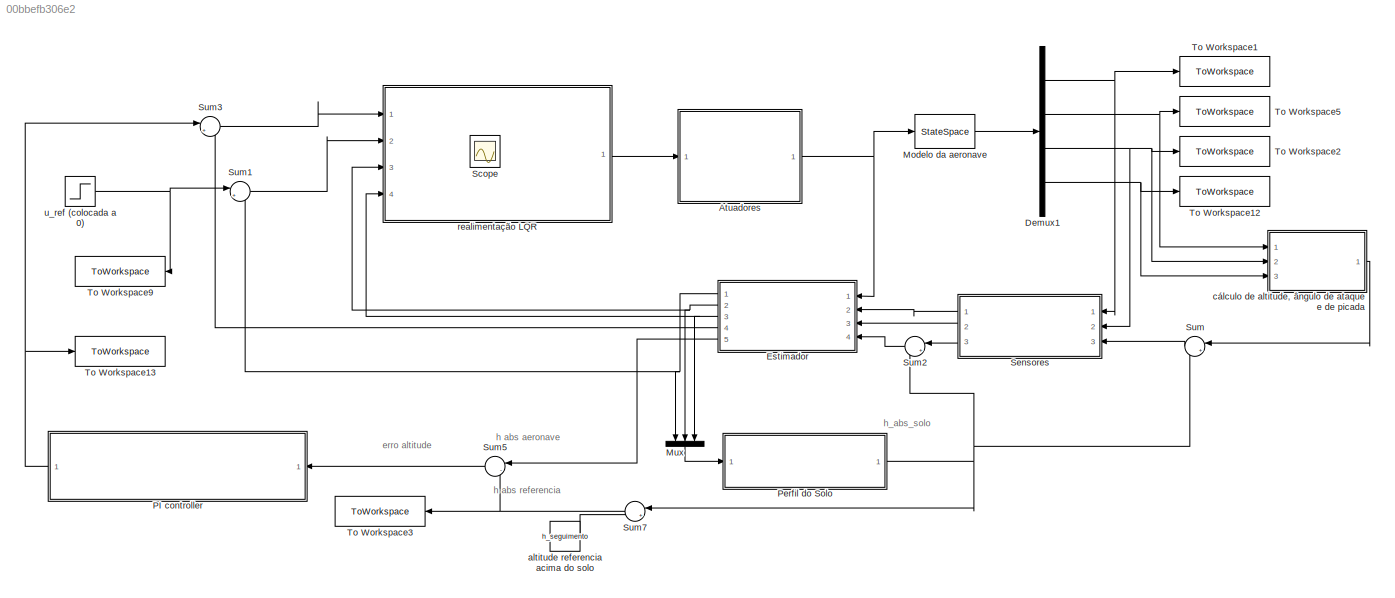
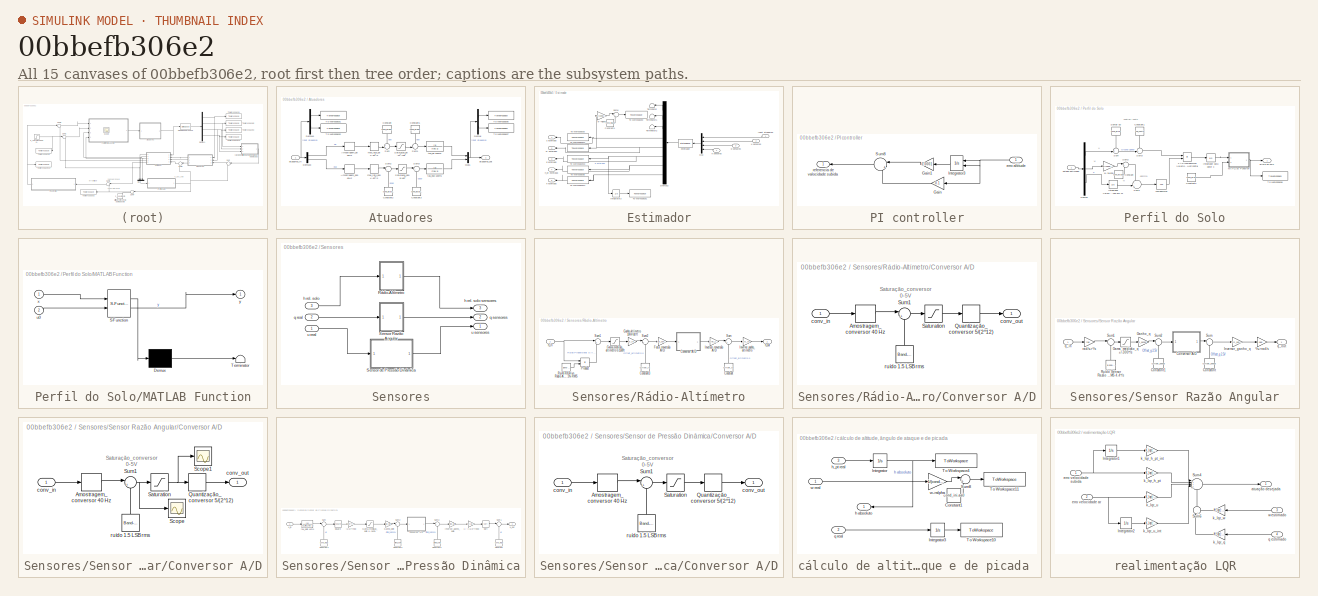
[diagram: thumbnail index - all 15 canvases of the model, root first then tree order]
MODEL slx_00bbefb306e2
KIND model
CONFIG AbsTol = auto
CONFIG EnableMultiTasking = off
CONFIG FixedStep = auto
CONFIG MaxStep = auto
CONFIG MinStep = auto
CONFIG RelTol = 1e-3
CONFIG SampleTimeConstraint = Unconstrained
CONFIG Solver = VariableStepAuto
CONFIG SolverName = VariableStepAuto
CONFIG StartTime = 0.0
CONFIG StopTime = 100
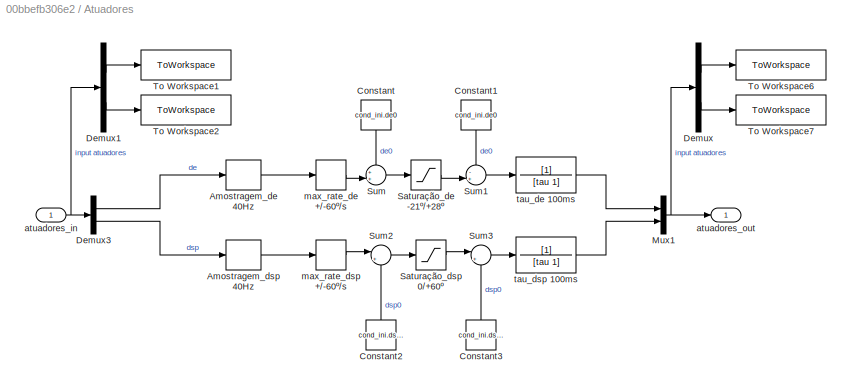
BLOCK [SubSystem] Atuadores
  Ports = [1, 1]
  RequestExecContextInheritance = off
BLOCK [RateLimiter] Atuadores/ max_rate_de +//-60º//s
  FallingSlewLimit = -vel_max_at*deg
  RisingSlewLimit = vel_max_at*deg
  SampleTimeMode = inherited
BLOCK [RateLimiter] Atuadores/ max_rate_dsp +//-60º//s
  FallingSlewLimit = -vel_max_at*deg
  RisingSlewLimit = vel_max_at*deg
  SampleTimeMode = inherited
BLOCK [ZeroOrderHold] Atuadores/Amostragem_de 40Hz
  SampleTime = 1/f_amost
BLOCK [ZeroOrderHold] Atuadores/Amostragem_dsp 40Hz
  SampleTime = 1/f_amost
BLOCK [Constant] Atuadores/Constant
  NameLocation = left
  Value = cond_ini.de0
BLOCK [Constant] Atuadores/Constant1
  NameLocation = left
  Value = cond_ini.de0
BLOCK [Constant] Atuadores/Constant2
  NameLocation = right
  Value = cond_ini.dsp0
BLOCK [Constant] Atuadores/Constant3
  NameLocation = right
  Value = cond_ini.dsp0
BLOCK [Demux] Atuadores/Demux
  Outputs = 2
  Ports = [1, 2]
BLOCK [Demux] Atuadores/Demux1
  Outputs = 2
  Ports = [1, 2]
BLOCK [Demux] Atuadores/Demux3
  Outputs = 2
  Ports = [1, 2]
BLOCK [Mux] Atuadores/Mux1
  DisplayOption = bar
  Inputs = 2
  Ports = [2, 1]
BLOCK [Saturate] Atuadores/Saturação_de -21º//+28º
  LowerLimit = max_deflec.demin
  UpperLimit = max_deflec.demax
BLOCK [Saturate] Atuadores/Saturação_dsp 0//+60º
  LowerLimit = 0
  UpperLimit = max_deflec.spmax
BLOCK [Sum] Atuadores/Sum
  Inputs = ++|
  Ports = [2, 1]
BLOCK [Sum] Atuadores/Sum1
  Inputs = -+|
  Ports = [2, 1]
BLOCK [Sum] Atuadores/Sum2
  Inputs = |++
  Ports = [2, 1]
BLOCK [Sum] Atuadores/Sum3
  Inputs = |+-
  Ports = [2, 1]
BLOCK [ToWorkspace] Atuadores/To Workspace1
  FixptAsFi = on
  MaxDataPoints = inf
  Ports = [1]
  SampleTime = -1
  SaveFormat = Structure With Time
  VariableName = de_ref
BLOCK [ToWorkspace] Atuadores/To Workspace2
  FixptAsFi = on
  MaxDataPoints = inf
  Ports = [1]
  SampleTime = -1
  SaveFormat = Structure With Time
  VariableName = dsp_ref
BLOCK [ToWorkspace] Atuadores/To Workspace6
  FixptAsFi = on
  MaxDataPoints = inf
  Ports = [1]
  SampleTime = -1
  SaveFormat = Structure With Time
  VariableName = de
BLOCK [ToWorkspace] Atuadores/To Workspace7
  FixptAsFi = on
  MaxDataPoints = inf
  Ports = [1]
  SampleTime = -1
  SaveFormat = Structure With Time
  VariableName = dsp
BLOCK [Inport] Atuadores/atuadores_in
BLOCK [Outport] Atuadores/atuadores_out
BLOCK [TransferFcn] Atuadores/tau_de 100ms
  Denominator = [tau 1]
BLOCK [TransferFcn] Atuadores/tau_dsp 100ms
  Denominator = [tau 1]
BLOCK [Demux] Demux1
  Ports = [1, 4]
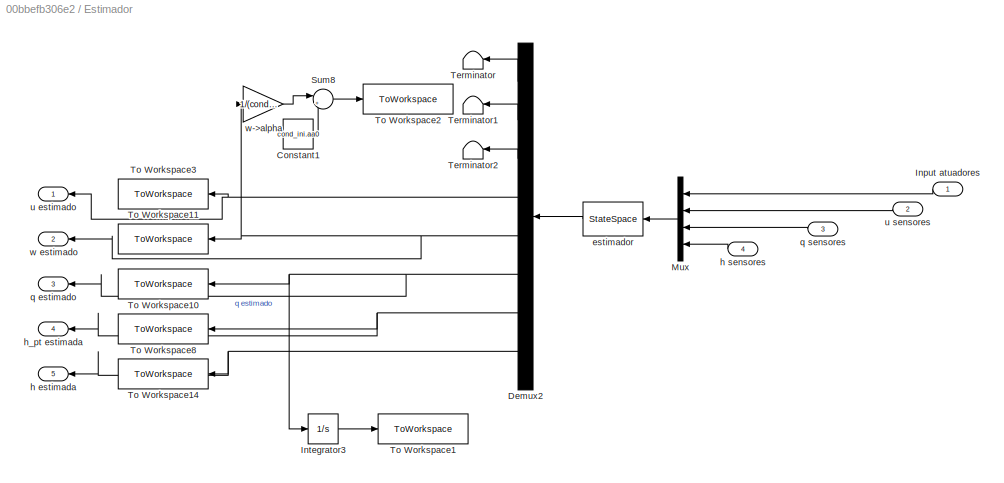
BLOCK [SubSystem] Estimador
  NameLocation = top
  Ports = [4, 5]
  RequestExecContextInheritance = off
BLOCK [Constant] Estimador/Constant1
  Value = cond_ini.aa0
BLOCK [Demux] Estimador/Demux2
  NameLocation = top
  Outputs = 8
  Ports = [1, 8]
BLOCK [Inport] Estimador/Input atuadores
  NameLocation = top
BLOCK [Integrator] Estimador/Integrator3
  InitialCondition = cond_ini.tt0
  Ports = [1, 1]
BLOCK [Mux] Estimador/Mux
  DisplayOption = bar
  NameLocation = top
  Ports = [4, 1]
BLOCK [Sum] Estimador/Sum8
  Inputs = |++
  Ports = [2, 1]
BLOCK [Terminator] Estimador/Terminator
  NameLocation = top
BLOCK [Terminator] Estimador/Terminator1
  NameLocation = top
BLOCK [Terminator] Estimador/Terminator2
  NameLocation = top
BLOCK [ToWorkspace] Estimador/To Workspace1
  FixptAsFi = on
  MaxDataPoints = inf
  Ports = [1]
  SampleTime = -1
  VariableName = tt_e
BLOCK [ToWorkspace] Estimador/To Workspace10
  FixptAsFi = on
  MaxDataPoints = inf
  NameLocation = top
  Ports = [1]
  SampleTime = -1
  VariableName = q_e
BLOCK [ToWorkspace] Estimador/To Workspace11
  FixptAsFi = on
  MaxDataPoints = inf
  NameLocation = top
  Ports = [1]
  SampleTime = -1
  VariableName = w_e
BLOCK [ToWorkspace] Estimador/To Workspace14
  FixptAsFi = on
  MaxDataPoints = inf
  NameLocation = top
  Ports = [1]
  SampleTime = -1
  VariableName = h_e
BLOCK [ToWorkspace] Estimador/To Workspace2
  FixptAsFi = on
  MaxDataPoints = inf
  Ports = [1]
  SampleTime = -1
  VariableName = aoa_e
BLOCK [ToWorkspace] Estimador/To Workspace3
  FixptAsFi = on
  MaxDataPoints = inf
  NameLocation = top
  Ports = [1]
  SampleTime = -1
  VariableName = u_e
BLOCK [ToWorkspace] Estimador/To Workspace8
  FixptAsFi = on
  MaxDataPoints = inf
  NameLocation = top
  Ports = [1]
  SampleTime = -1
  VariableName = h_pt_e
BLOCK [StateSpace] Estimador/estimador
  A = ae
  B = be
  C = ce
  D = de
  InitialCondition = x0_e
  NameLocation = top
  Ports = [1, 1]
BLOCK [Outport] Estimador/h estimada
  NameLocation = top
  Port = 5
BLOCK [Inport] Estimador/h sensores
  NameLocation = top
  Port = 4
BLOCK [Outport] Estimador/h_pt estimada
  NameLocation = top
  Port = 4
BLOCK [Outport] Estimador/q estimado
  Port = 3
BLOCK [Inport] Estimador/q sensores
  Port = 3
BLOCK [Outport] Estimador/u estimado
  NameLocation = top
BLOCK [Inport] Estimador/u sensores
  Port = 2
BLOCK [Outport] Estimador/w estimado
  Port = 2
BLOCK [Gain] Estimador/w->alpha
  Gain = 1/(cond_ini.u0)
BLOCK [StateSpace] Modelo da aeronave
  A = a_h_pt
  B = b_h_pt
  C = c_h_pt
  D = d_h_pt
  InitialCondition = x0
  Ports = [1, 1]
BLOCK [Mux] Mux
  DisplayOption = bar
  Inputs = 3
  NameLocation = left
  Ports = [3, 1]
BLOCK [SubSystem] PI controller
  NameLocation = top
  Ports = [1, 1]
  RequestExecContextInheritance = off
BLOCK [Gain] PI controller/Gain
  Gain = 0.1
  NameLocation = top
BLOCK [Gain] PI controller/Gain1
  Gain = 0.0001
  NameLocation = top
BLOCK [Integrator] PI controller/Integrator3
  ExternalReset = either
  NameLocation = top
  Ports = [2, 1]
BLOCK [Sum] PI controller/Sum8
  Inputs = |++
  NameLocation = top
  Ports = [2, 1]
BLOCK [Inport] PI controller/erro altitude
BLOCK [Outport] PI controller/referencia de valocidade subida
  NameLocation = top
BLOCK [SubSystem] Perfil do Solo
  NameLocation = top
  Ports = [1, 1]
  RequestExecContextInheritance = off
BLOCK [Constant] Perfil do Solo/Constant
  Value = cond_ini.aa0
BLOCK [Constant] Perfil do Solo/Constant1
  NameLocation = left
  Value = vel_vento
BLOCK [Constant] Perfil do Solo/Constant2
  Value = cond_ini.u0
BLOCK [Demux] Perfil do Solo/Demux
  Outputs = 3
  Ports = [1, 3]
BLOCK [Integrator] Perfil do Solo/Integrador Velocidade para posiçao em x1
  InitialCondition = cond_ini.tt0
  Ports = [1, 1]
BLOCK [Integrator] Perfil do Solo/Integrador para obter x
  Ports = [1, 1]
BLOCK [SubSystem] Perfil do Solo/MATLAB Function
  ErrorFcn = Stateflow.Translate.translate
  PermitHierarchicalResolution = ExplicitOnly
  Ports = [2, 1]
  RequestExecContextInheritance = off
  SFBlockType = MATLAB Function
  TreatAsAtomicUnit = on
BLOCK [Demux] Perfil do Solo/MATLAB Function/ Demux 
  Outputs = 1
  Ports = [1, 1]
BLOCK [S-Function] Perfil do Solo/MATLAB Function/ SFunction 
  EnableBusSupport = on
  FunctionName = sf_sfun
  PortCounts = [2 2]
  Ports = [2, 2]
  SFcnIsStateOwnerBlock = off
  SFunctionDeploymentMode = off
  Tag = Stateflow S-Function 2
BLOCK [Terminator] Perfil do Solo/MATLAB Function/ Terminator 
BLOCK [Inport] Perfil do Solo/MATLAB Function/u0
  Port = 2
BLOCK [Inport] Perfil do Solo/MATLAB Function/x
BLOCK [Outport] Perfil do Solo/MATLAB Function/y
  VectorParamsAs1DForOutWhenUnconnected = off
BLOCK [Constant] Perfil do Solo/Somar u0
  NameLocation = left
  Value = cond_ini.u0
BLOCK [Sum] Perfil do Solo/Sum
  Inputs = ++|
  Ports = [2, 1]
BLOCK [Sum] Perfil do Solo/Sum1
  Inputs = -+|
  Ports = [2, 1]
BLOCK [Sum] Perfil do Solo/Sum2
  Inputs = |++
  Ports = [2, 1]
BLOCK [Sum] Perfil do Solo/Sum3
  Inputs = -+|
  Ports = [2, 1]
BLOCK [Product] Perfil do Solo/TAS*cos(gamma) Velocidade Horizontal
  Ports = [2, 1]
BLOCK [ToWorkspace] Perfil do Solo/To Workspace8
  FixptAsFi = on
  MaxDataPoints = inf
  Ports = [1]
  SampleTime = -1
  VariableName = h_solo
BLOCK [Outport] Perfil do Solo/altura do solo
  VectorParamsAs1DForOutWhenUnconnected = off
BLOCK [Trigonometry] Perfil do Solo/cos(gamma)
  Operator = cos
  Ports = [1, 1]
BLOCK [Inport] Perfil do Solo/estado estimado
BLOCK [Gain] Perfil do Solo/w->alpha
  Gain = 1/(cond_ini.u0)
BLOCK [Scope] Scope
  Floating = off
  IOType = viewer
  NumInputPorts = 1
  Ports = []
  ScopeSpecificationString = Simulink.scopes.TimeScopeBlockCfg('CurrentConfiguration', extmgr.ConfigurationSet(extmgr.Configuration('Core','General UI',true),extmgr.Configuration('Core','Source UI',true),extmgr.Configuration('Sources','WiredSimulink',true),extmgr.Configuration('Visuals','Time Domain',true,'SerializedDisplays',{struct('MinYLimReal','-14.17435','MaxYLimReal','7.85489','YLabelReal','','MinYLimMag','0.00000','Max...<+1361ch>
BLOCK [SubSystem] Sensores
  NameLocation = top
  Ports = [3, 3]
  RequestExecContextInheritance = off
BLOCK [SubSystem] Sensores/Rádio-Altímetro
  NameLocation = top
  Ports = [1, 1]
  RequestExecContextInheritance = off
BLOCK [Constant] Sensores/Rádio-Altímetro/Constant
  NameLocation = right
  Value = Offset_ra
BLOCK [Constant] Sensores/Rádio-Altímetro/Constant3
  NameLocation = right
  Value = Offset_ra
BLOCK [SubSystem] Sensores/Rádio-Altímetro/Conversor A//D
  Ports = [1, 1]
  RequestExecContextInheritance = off
BLOCK [ZeroOrderHold] Sensores/Rádio-Altímetro/Conversor A//D/Amostragem_conversor 40 Hz
  SampleTime = 1/f_amost
BLOCK [Quantizer] Sensores/Rádio-Altímetro/Conversor A//D/Quantização_conversor 5//(2^12)
  QuantizationInterval = fat_quant
BLOCK [Saturate] Sensores/Rádio-Altímetro/Conversor A//D/Saturation
  LowerLimit = conv_min
  UpperLimit = conv_max
BLOCK [Sum] Sensores/Rádio-Altímetro/Conversor A//D/Sum1
  Inputs = |++
  Ports = [2, 1]
BLOCK [Inport] Sensores/Rádio-Altímetro/Conversor A//D/conv_in
  NameLocation = left
BLOCK [Outport] Sensores/Rádio-Altímetro/Conversor A//D/conv_out
  NameLocation = right
BLOCK [Reference] Sensores/Rádio-Altímetro/Conversor A//D/ruído 1.5 LSB rms  REF=simulink/Sources/Band-Limited
White Noise
  NameLocation = right
  Ports = [0, 1]
  SourceBlock = simulink/Sources/Band-Limited\nWhite Noise
  SourceProductBaseCode = SL
  SourceType = Band-Limited White Noise.
BLOCK [Gain] Sensores/Rádio-Altímetro/Fator_conversão A//D
  Gain = fat_conv_ra
BLOCK [Saturate] Sensores/Rádio-Altímetro/Gama_medição_altímetro 0-1500ft
  LowerLimit = h_ra_min
  NameLocation = top
  UpperLimit = h_ra_max
BLOCK [Gain] Sensores/Rádio-Altímetro/Ganho_altímetro 10mVdc//ft
  Gain = G_ra
BLOCK [Gain] Sensores/Rádio-Altímetro/Inversor_conversão A//D
  Gain = 1/fat_conv_ra
BLOCK [Gain] Sensores/Rádio-Altímetro/Inversor_ganho_altímetro
  Gain = 1/G_ra
BLOCK [Product] Sensores/Rádio-Altímetro/Product
  Ports = [2, 1]
BLOCK [Reference] Sensores/Rádio-Altímetro/Ruído Relativo Rádio Altimetro 1.5% RMS  REF=simulink/Sources/Band-Limited
White Noise
  NameLocation = left
  Ports = [0, 1]
  SourceBlock = simulink/Sources/Band-Limited\nWhite Noise
  SourceProductBaseCode = SL
  SourceType = Band-Limited White Noise.
BLOCK [Sum] Sensores/Rádio-Altímetro/Sum
  Inputs = |+-
  Ports = [2, 1]
BLOCK [Sum] Sensores/Rádio-Altímetro/Sum1
  Inputs = |++
  Ports = [2, 1]
BLOCK [Sum] Sensores/Rádio-Altímetro/Sum2
  Inputs = |++
  Ports = [2, 1]
BLOCK [Inport] Sensores/Rádio-Altímetro/h_in
  NameLocation = left
BLOCK [Outport] Sensores/Rádio-Altímetro/h_out
  NameLocation = right
BLOCK [SubSystem] Sensores/Sensor Razão Angular
  NameLocation = top
  Ports = [1, 1]
  RequestExecContextInheritance = off
BLOCK [Constant] Sensores/Sensor Razão Angular/Constant
  NameLocation = right
  Value = Offset_sensq
BLOCK [Constant] Sensores/Sensor Razão Angular/Constant1
  NameLocation = right
  Value = Offset_sensq
BLOCK [SubSystem] Sensores/Sensor Razão Angular/Conversor A//D
  Ports = [1, 1]
  RequestExecContextInheritance = off
BLOCK [ZeroOrderHold] Sensores/Sensor Razão Angular/Conversor A//D/Amostragem_conversor 40 Hz
  SampleTime = 1/f_amost
BLOCK [Quantizer] Sensores/Sensor Razão Angular/Conversor A//D/Quantização_conversor 5//(2^12)
  QuantizationInterval = fat_quant
BLOCK [Saturate] Sensores/Sensor Razão Angular/Conversor A//D/Saturation
  LowerLimit = conv_min
  UpperLimit = conv_max
BLOCK [Scope] Sensores/Sensor Razão Angular/Conversor A//D/Scope
  Floating = off
  NumInputPorts = 1
  Ports = [1]
  ScopeSpecificationString = Simulink.scopes.TimeScopeBlockCfg('CurrentConfiguration', extmgr.ConfigurationSet(extmgr.Configuration('Core','General UI',true),extmgr.Configuration('Core','Source UI',true),extmgr.Configuration('Sources','WiredSimulink',true,'DataLoggingVariableName','ScopeData1'),extmgr.Configuration('Visuals','Time Domain',true,'SerializedDisplays',{struct('MinYLimReal','2.47152','MaxYLimReal','2.47222','YLabe...<+1409ch>
BLOCK [Scope] Sensores/Sensor Razão Angular/Conversor A//D/Scope1
  Floating = off
  NumInputPorts = 1
  Ports = [1]
  ScopeSpecificationString = Simulink.scopes.TimeScopeBlockCfg('CurrentConfiguration', extmgr.ConfigurationSet(extmgr.Configuration('Core','General UI',true),extmgr.Configuration('Core','Source UI',true),extmgr.Configuration('Sources','WiredSimulink',true,'DataLoggingVariableName','ScopeData2'),extmgr.Configuration('Visuals','Time Domain',true,'SerializedDisplays',{struct('MinYLimReal','2.48787','MaxYLimReal','2.5083','YLabel...<+1412ch>
BLOCK [Sum] Sensores/Sensor Razão Angular/Conversor A//D/Sum1
  Inputs = |++
  Ports = [2, 1]
BLOCK [Inport] Sensores/Sensor Razão Angular/Conversor A//D/conv_in
  NameLocation = left
BLOCK [Outport] Sensores/Sensor Razão Angular/Conversor A//D/conv_out
  NameLocation = right
BLOCK [Reference] Sensores/Sensor Razão Angular/Conversor A//D/ruído 1.5 LSB rms  REF=simulink/Sources/Band-Limited
White Noise
  NameLocation = right
  Ports = [0, 1]
  SourceBlock = simulink/Sources/Band-Limited\nWhite Noise
  SourceProductBaseCode = SL
  SourceType = Band-Limited White Noise.
BLOCK [Saturate] Sensores/Sensor Razão Angular/Gama_medição_q +//-300º//s
  LowerLimit = q_min_sensq
  NameLocation = top
  UpperLimit = q_max_sensq
BLOCK [Gain] Sensores/Sensor Razão Angular/Ganho_q
  Gain = G_sensq
BLOCK [Gain] Sensores/Sensor Razão Angular/Inversor_ganho_q
  Gain = 1/G_sensq
BLOCK [Reference] Sensores/Sensor Razão Angular/Ruído Sensor Razão Picada RMS 4.4º//s  REF=simulink/Sources/Band-Limited
White Noise
  NameLocation = right
  Ports = [0, 1]
  SourceBlock = simulink/Sources/Band-Limited\nWhite Noise
  SourceProductBaseCode = SL
  SourceType = Band-Limited White Noise.
BLOCK [Sum] Sensores/Sensor Razão Angular/Sum
  Inputs = |+-
  Ports = [2, 1]
BLOCK [Sum] Sensores/Sensor Razão Angular/Sum1
  Inputs = |++
  Ports = [2, 1]
BLOCK [Sum] Sensores/Sensor Razão Angular/Sum2
  Inputs = |++
  Ports = [2, 1]
BLOCK [Inport] Sensores/Sensor Razão Angular/q_in
BLOCK [Outport] Sensores/Sensor Razão Angular/q_out
BLOCK [Gain] Sensores/Sensor Razão Angular/rad//s->º//s
  Gain = rad
BLOCK [Gain] Sensores/Sensor Razão Angular/º//s->rad//s
  Gain = deg
BLOCK [SubSystem] Sensores/Sensor de Pressão Dinâmica
  Ports = [1, 1]
  RequestExecContextInheritance = off
BLOCK [Gain] Sensores/Sensor de Pressão Dinâmica/(1//2)*rho0
  Gain = (1/2)*rho0
BLOCK [Gain] Sensores/Sensor de Pressão Dinâmica/1 // ((1//2)*rho0)
  Gain = 1/((1/2)*rho0)
BLOCK [Constant] Sensores/Sensor de Pressão Dinâmica/Constant
  NameLocation = right
  Value = cond_ini.u0
BLOCK [Constant] Sensores/Sensor de Pressão Dinâmica/Constant1
  NameLocation = right
  Value = cond_ini.u0
BLOCK [Constant] Sensores/Sensor de Pressão Dinâmica/Constant2
  NameLocation = right
  Value = offset_pdin
BLOCK [Constant] Sensores/Sensor de Pressão Dinâmica/Constant3
  NameLocation = right
  Value = offset_pdin
BLOCK [SubSystem] Sensores/Sensor de Pressão Dinâmica/Conversor A//D
  Ports = [1, 1]
  RequestExecContextInheritance = off
BLOCK [ZeroOrderHold] Sensores/Sensor de Pressão Dinâmica/Conversor A//D/Amostragem_conversor 40 Hz
  SampleTime = 1/f_amost
BLOCK [Quantizer] Sensores/Sensor de Pressão Dinâmica/Conversor A//D/Quantização_conversor 5//(2^12)
  QuantizationInterval = fat_quant
BLOCK [Saturate] Sensores/Sensor de Pressão Dinâmica/Conversor A//D/Saturation
  LowerLimit = conv_min
  UpperLimit = conv_max
BLOCK [Sum] Sensores/Sensor de Pressão Dinâmica/Conversor A//D/Sum1
  Inputs = |++
  Ports = [2, 1]
BLOCK [Inport] Sensores/Sensor de Pressão Dinâmica/Conversor A//D/conv_in
  NameLocation = left
BLOCK [Outport] Sensores/Sensor de Pressão Dinâmica/Conversor A//D/conv_out
  NameLocation = right
BLOCK [Reference] Sensores/Sensor de Pressão Dinâmica/Conversor A//D/ruído 1.5 LSB rms  REF=simulink/Sources/Band-Limited
White Noise
  NameLocation = right
  Ports = [0, 1]
  SourceBlock = simulink/Sources/Band-Limited\nWhite Noise
  SourceProductBaseCode = SL
  SourceType = Band-Limited White Noise.
BLOCK [Saturate] Sensores/Sensor de Pressão Dinâmica/Gama_medição_pdin +//-2kPa
  LowerLimit = pdin_min
  UpperLimit = pdin_max
BLOCK [Gain] Sensores/Sensor de Pressão Dinâmica/Ganho_pdin
  Gain = Gp_din
BLOCK [Gain] Sensores/Sensor de Pressão Dinâmica/Inversor_ganho_pdin
  Gain = 1/Gp_din
BLOCK [Sqrt] Sensores/Sensor de Pressão Dinâmica/Sqrt
BLOCK [Math] Sensores/Sensor de Pressão Dinâmica/Square
  Operator = square
  Ports = [1, 1]
  SignedPower = on
BLOCK [Sum] Sensores/Sensor de Pressão Dinâmica/Sum
  Inputs = |++
  Ports = [2, 1]
BLOCK [Sum] Sensores/Sensor de Pressão Dinâmica/Sum1
  Inputs = |+-
  Ports = [2, 1]
BLOCK [Sum] Sensores/Sensor de Pressão Dinâmica/Sum2
  Inputs = |++
  Ports = [2, 1]
BLOCK [Sum] Sensores/Sensor de Pressão Dinâmica/Sum3
  Inputs = |+-
  Ports = [2, 1]
BLOCK [TransferFcn] Sensores/Sensor de Pressão Dinâmica/tau_pdin 10ms
  Denominator = [p_din_tau 1]
BLOCK [Inport] Sensores/Sensor de Pressão Dinâmica/u_in
BLOCK [Outport] Sensores/Sensor de Pressão Dinâmica/u_out
BLOCK [Inport] Sensores/h rel. solo
  NameLocation = left
  Port = 3
BLOCK [Outport] Sensores/h rel. solo sensores
  NameLocation = right
  Port = 3
BLOCK [Inport] Sensores/q real
  NameLocation = left
  Port = 2
BLOCK [Outport] Sensores/q sensores
  NameLocation = right
  Port = 2
BLOCK [Inport] Sensores/u real
  NameLocation = left
BLOCK [Outport] Sensores/u sensores
  NameLocation = right
BLOCK [Sum] Sum
  Inputs = |+-
  NameLocation = top
  Ports = [2, 1]
BLOCK [Sum] Sum1
  Inputs = |+-
  Ports = [2, 1]
BLOCK [Sum] Sum2
  Inputs = |++
  NameLocation = top
  Ports = [2, 1]
BLOCK [Sum] Sum3
  Inputs = |+-
  Ports = [2, 1]
BLOCK [Sum] Sum5
  Inputs = |-+
  NameLocation = top
  Ports = [2, 1]
BLOCK [Sum] Sum7
  Inputs = |++
  NameLocation = top
  Ports = [2, 1]
BLOCK [ToWorkspace] To Workspace1
  FixptAsFi = on
  MaxDataPoints = inf
  Ports = [1]
  SampleTime = -1
  VariableName = u
BLOCK [ToWorkspace] To Workspace12
  FixptAsFi = on
  MaxDataPoints = inf
  Ports = [1]
  SampleTime = -1
  VariableName = h_pt
BLOCK [ToWorkspace] To Workspace13
  FixptAsFi = on
  MaxDataPoints = inf
  Ports = [1]
  SampleTime = -1
  VariableName = h_pt_ref
BLOCK [ToWorkspace] To Workspace2
  FixptAsFi = on
  MaxDataPoints = inf
  Ports = [1]
  SampleTime = -1
  VariableName = q
BLOCK [ToWorkspace] To Workspace3
  FixptAsFi = on
  MaxDataPoints = inf
  NameLocation = top
  Ports = [1]
  SampleTime = -1
  VariableName = h_ref
BLOCK [ToWorkspace] To Workspace5
  FixptAsFi = on
  MaxDataPoints = inf
  Ports = [1]
  SampleTime = -1
  VariableName = w
BLOCK [ToWorkspace] To Workspace9
  FixptAsFi = on
  MaxDataPoints = inf
  NameLocation = top
  Ports = [1]
  SampleTime = -1
  VariableName = u_ref
BLOCK [Constant] altitude referencia acima do solo
  Value = h_seguimento
BLOCK [SubSystem] cálculo de altitude, ângulo de ataque e de picada 
  Ports = [3, 1]
  RequestExecContextInheritance = off
BLOCK [Constant] cálculo de altitude, ângulo de ataque e de picada /Constant1
  Value = cond_ini.aa0
BLOCK [Integrator] cálculo de altitude, ângulo de ataque e de picada /Integrator
  InitialCondition = cond_ini.h0+h_solo_0
  Ports = [1, 1]
BLOCK [Integrator] cálculo de altitude, ângulo de ataque e de picada /Integrator3
  InitialCondition = cond_ini.tt0
  Ports = [1, 1]
BLOCK [Sum] cálculo de altitude, ângulo de ataque e de picada /Sum8
  Inputs = |++
  Ports = [2, 1]
BLOCK [ToWorkspace] cálculo de altitude, ângulo de ataque e de picada /To Workspace10
  FixptAsFi = on
  MaxDataPoints = inf
  Ports = [1]
  SampleTime = -1
  VariableName = tt
BLOCK [ToWorkspace] cálculo de altitude, ângulo de ataque e de picada /To Workspace11
  FixptAsFi = on
  MaxDataPoints = inf
  Ports = [1]
  SampleTime = -1
  VariableName = aoa
BLOCK [ToWorkspace] cálculo de altitude, ângulo de ataque e de picada /To Workspace4
  FixptAsFi = on
  MaxDataPoints = inf
  Ports = [1]
  SampleTime = -1
  VariableName = h
BLOCK [Outport] cálculo de altitude, ângulo de ataque e de picada /h absoluto
BLOCK [Inport] cálculo de altitude, ângulo de ataque e de picada /h_pt real
  Port = 3
BLOCK [Inport] cálculo de altitude, ângulo de ataque e de picada /q real
  Port = 2
BLOCK [Inport] cálculo de altitude, ângulo de ataque e de picada /w real
BLOCK [Gain] cálculo de altitude, ângulo de ataque e de picada /w->alpha
  Gain = 1/(cond_ini.u0)
BLOCK [SubSystem] realimentação LQR
  Ports = [4, 1]
  RequestExecContextInheritance = off
BLOCK [Integrator] realimentação LQR/Integrator1
  Ports = [1, 1]
BLOCK [Integrator] realimentação LQR/Integrator2
  Ports = [1, 1]
BLOCK [Sum] realimentação LQR/Sum4
  Inputs = |++++-
  Ports = [5, 1]
BLOCK [Sum] realimentação LQR/Sum6
  Inputs = |++
  NameLocation = right
  Ports = [2, 1]
BLOCK [Outport] realimentação LQR/atuação desejada
BLOCK [Inport] realimentação LQR/erro velocidade ar
  Port = 2
BLOCK [Inport] realimentação LQR/erro velocidade subida
BLOCK [Gain] realimentação LQR/k_lqr_h_pt
  Gain = K_lqr(:,4)
  Multiplication = Matrix(K*u)
BLOCK [Gain] realimentação LQR/k_lqr_h_pt_int
  Gain = K_lqr(:,6)
  Multiplication = Matrix(K*u)
BLOCK [Gain] realimentação LQR/k_lqr_q
  Gain = K_lqr(:,3)
  Multiplication = Matrix(K*u)
  NameLocation = top
BLOCK [Gain] realimentação LQR/k_lqr_u
  Gain = K_lqr(:,1)
  Multiplication = Matrix(K*u)
BLOCK [Gain] realimentação LQR/k_lqr_u_int
  Gain = K_lqr(:,5)
  Multiplication = Matrix(K*u)
BLOCK [Gain] realimentação LQR/k_lqr_w
  Gain = K_lqr(:,2)
  Multiplication = Matrix(K*u)
  NameLocation = top
BLOCK [Inport] realimentação LQR/q estimado
  Port = 4
BLOCK [Inport] realimentação LQR/w estimado
  Port = 3
BLOCK [Step] u_ref (colocada a 0)
  After = u_ref
  SampleTime = 0
ANNOTATION (root): erro altitude
ANNOTATION (root): h abs aeronave
ANNOTATION (root): h abs referencia
ANNOTATION (root): h_abs_solo
ANNOTATION Perfil do Solo: gamma
ANNOTATION Perfil do Solo: subtrair vento
ANNOTATION Perfil do Solo: tt
ANNOTATION Perfil do Solo: u
ANNOTATION Perfil do Solo: w
ANNOTATION Sensores/Rádio-Altímetro/Conversor A//D: Saturação_conversor 0-5V
ANNOTATION Sensores/Sensor Razão Angular/Conversor A//D: Saturação_conversor 0-5V
ANNOTATION Sensores/Sensor de Pressão Dinâmica/Conversor A//D: Saturação_conversor 0-5V
LINE Atuadores/ max_rate_de +//-60º//s:1 -> Atuadores/Sum:2
LINE Atuadores/ max_rate_dsp +//-60º//s:1 -> Atuadores/Sum2:1
LINE Atuadores/Amostragem_de 40Hz:1 -> Atuadores/ max_rate_de +//-60º//s:1
LINE Atuadores/Amostragem_dsp 40Hz:1 -> Atuadores/ max_rate_dsp +//-60º//s:1
LINE Atuadores/Constant1:1 -> Atuadores/Sum1:1
LINE Atuadores/Constant2:1 -> Atuadores/Sum2:2
LINE Atuadores/Constant3:1 -> Atuadores/Sum3:2
LINE Atuadores/Constant:1 -> Atuadores/Sum:1
LINE Atuadores/Demux1:1 -> Atuadores/To Workspace1:1
LINE Atuadores/Demux1:2 -> Atuadores/To Workspace2:1
LINE Atuadores/Demux3:1 -> Atuadores/Amostragem_de 40Hz:1
LINE Atuadores/Demux3:2 -> Atuadores/Amostragem_dsp 40Hz:1
LINE Atuadores/Demux:1 -> Atuadores/To Workspace6:1
LINE Atuadores/Demux:2 -> Atuadores/To Workspace7:1
NET Atuadores/Mux1:1 -> Atuadores/Demux:1, Atuadores/atuadores_out:1
LINE Atuadores/Saturação_de -21º//+28º:1 -> Atuadores/Sum1:2
LINE Atuadores/Saturação_dsp 0//+60º:1 -> Atuadores/Sum3:1
LINE Atuadores/Sum1:1 -> Atuadores/tau_de 100ms:1
LINE Atuadores/Sum2:1 -> Atuadores/Saturação_dsp 0//+60º:1
LINE Atuadores/Sum3:1 -> Atuadores/tau_dsp 100ms:1
LINE Atuadores/Sum:1 -> Atuadores/Saturação_de -21º//+28º:1
NET Atuadores/atuadores_in:1 -> Atuadores/Demux1:1, Atuadores/Demux3:1
LINE Atuadores/tau_de 100ms:1 -> Atuadores/Mux1:1
LINE Atuadores/tau_dsp 100ms:1 -> Atuadores/Mux1:2
NET Atuadores:1 -> Estimador:1, Modelo da aeronave:1
NET Demux1:1 -> Sensores:1, To Workspace1:1
NET Demux1:2 -> To Workspace5:1, cálculo de altitude, ângulo de ataque e de picada :1
NET Demux1:3 -> Sensores:2, To Workspace2:1, cálculo de altitude, ângulo de ataque e de picada :2
NET Demux1:4 -> To Workspace12:1, cálculo de altitude, ângulo de ataque e de picada :3
LINE Estimador/Constant1:1 -> Estimador/Sum8:2
LINE Estimador/Demux2:1 -> Estimador/Terminator:1
LINE Estimador/Demux2:2 -> Estimador/Terminator1:1
LINE Estimador/Demux2:3 -> Estimador/Terminator2:1
NET Estimador/Demux2:4 -> Estimador/To Workspace3:1, Estimador/u estimado:1
NET Estimador/Demux2:5 -> Estimador/To Workspace11:1, Estimador/w estimado:1, Estimador/w->alpha:1
NET Estimador/Demux2:6 -> Estimador/Integrator3:1, Estimador/To Workspace10:1, Estimador/q estimado:1
NET Estimador/Demux2:7 -> Estimador/To Workspace8:1, Estimador/h_pt estimada:1
NET Estimador/Demux2:8 -> Estimador/To Workspace14:1, Estimador/h estimada:1
LINE Estimador/Input atuadores:1 -> Estimador/Mux:1
LINE Estimador/Integrator3:1 -> Estimador/To Workspace1:1
LINE Estimador/Mux:1 -> Estimador/estimador:1
LINE Estimador/Sum8:1 -> Estimador/To Workspace2:1
LINE Estimador/estimador:1 -> Estimador/Demux2:1
LINE Estimador/h sensores:1 -> Estimador/Mux:4
LINE Estimador/q sensores:1 -> Estimador/Mux:3
LINE Estimador/u sensores:1 -> Estimador/Mux:2
LINE Estimador/w->alpha:1 -> Estimador/Sum8:1
NET Estimador:1 -> Mux:1, Sum1:2
NET Estimador:2 -> Mux:2, realimentação LQR:3
NET Estimador:3 -> Mux:3, realimentação LQR:4
LINE Estimador:4 -> Sum3:2
LINE Estimador:5 -> Sum5:1
LINE Modelo da aeronave:1 -> Demux1:1
LINE Mux:1 -> Perfil do Solo:1
LINE PI controller/Gain1:1 -> PI controller/Sum8:1
LINE PI controller/Gain:1 -> PI controller/Sum8:2
LINE PI controller/Integrator3:1 -> PI controller/Gain1:1
LINE PI controller/Sum8:1 -> PI controller/referencia de valocidade subida:1
NET PI controller/erro altitude:1 -> PI controller/Gain:1, PI controller/Integrator3:1, PI controller/Integrator3:2
NET PI controller:1 -> Sum3:1, To Workspace13:1
LINE Perfil do Solo/Constant1:1 -> Perfil do Solo/Sum3:1
LINE Perfil do Solo/Constant2:1 -> Perfil do Solo/MATLAB Function:2
LINE Perfil do Solo/Constant:1 -> Perfil do Solo/Sum2:2
LINE Perfil do Solo/Demux:1 -> Perfil do Solo/Sum:2
LINE Perfil do Solo/Demux:2 -> Perfil do Solo/w->alpha:1
LINE Perfil do Solo/Demux:3 -> Perfil do Solo/Integrador Velocidade para posiçao em x1:1
LINE Perfil do Solo/Integrador Velocidade para posiçao em x1:1 -> Perfil do Solo/Sum1:2
LINE Perfil do Solo/Integrador para obter x:1 -> Perfil do Solo/MATLAB Function:1
NET Perfil do Solo/MATLAB Function:1 -> Perfil do Solo/To Workspace8:1, Perfil do Solo/altura do solo:1
LINE Perfil do Solo/Somar u0:1 -> Perfil do Solo/Sum:1
LINE Perfil do Solo/Sum1:1 -> Perfil do Solo/cos(gamma):1
LINE Perfil do Solo/Sum2:1 -> Perfil do Solo/Sum1:1
LINE Perfil do Solo/Sum3:1 -> Perfil do Solo/TAS*cos(gamma) Velocidade Horizontal:1
LINE Perfil do Solo/Sum:1 -> Perfil do Solo/Sum3:2
LINE Perfil do Solo/TAS*cos(gamma) Velocidade Horizontal:1 -> Perfil do Solo/Integrador para obter x:1
LINE Perfil do Solo/cos(gamma):1 -> Perfil do Solo/TAS*cos(gamma) Velocidade Horizontal:2
LINE Perfil do Solo/estado estimado:1 -> Perfil do Solo/Demux:1
LINE Perfil do Solo/w->alpha:1 -> Perfil do Solo/Sum2:1
NET Perfil do Solo:1 -> Sum2:2, Sum7:1, Sum:2
LINE Sensores/Rádio-Altímetro/Constant3:1 -> Sensores/Rádio-Altímetro/Sum2:2
LINE Sensores/Rádio-Altímetro/Constant:1 -> Sensores/Rádio-Altímetro/Sum:2
LINE Sensores/Rádio-Altímetro/Conversor A//D/Amostragem_conversor 40 Hz:1 -> Sensores/Rádio-Altímetro/Conversor A//D/Sum1:1
LINE Sensores/Rádio-Altímetro/Conversor A//D/Quantização_conversor 5//(2^12):1 -> Sensores/Rádio-Altímetro/Conversor A//D/conv_out:1
LINE Sensores/Rádio-Altímetro/Conversor A//D/Saturation:1 -> Sensores/Rádio-Altímetro/Conversor A//D/Quantização_conversor 5//(2^12):1
LINE Sensores/Rádio-Altímetro/Conversor A//D/Sum1:1 -> Sensores/Rádio-Altímetro/Conversor A//D/Saturation:1
LINE Sensores/Rádio-Altímetro/Conversor A//D/conv_in:1 -> Sensores/Rádio-Altímetro/Conversor A//D/Amostragem_conversor 40 Hz:1
LINE Sensores/Rádio-Altímetro/Conversor A//D/ruído 1.5 LSB rms:1 -> Sensores/Rádio-Altímetro/Conversor A//D/Sum1:2
LINE Sensores/Rádio-Altímetro/Conversor A//D:1 -> Sensores/Rádio-Altímetro/Inversor_conversão A//D:1
LINE Sensores/Rádio-Altímetro/Fator_conversão A//D:1 -> Sensores/Rádio-Altímetro/Conversor A//D:1
LINE Sensores/Rádio-Altímetro/Gama_medição_altímetro 0-1500ft:1 -> Sensores/Rádio-Altímetro/Ganho_altímetro 10mVdc//ft:1
LINE Sensores/Rádio-Altímetro/Ganho_altímetro 10mVdc//ft:1 -> Sensores/Rádio-Altímetro/Sum2:1
LINE Sensores/Rádio-Altímetro/Inversor_conversão A//D:1 -> Sensores/Rádio-Altímetro/Sum:1
LINE Sensores/Rádio-Altímetro/Inversor_ganho_altímetro:1 -> Sensores/Rádio-Altímetro/h_out:1
LINE Sensores/Rádio-Altímetro/Product:1 -> Sensores/Rádio-Altímetro/Sum1:2
LINE Sensores/Rádio-Altímetro/Ruído Relativo Rádio Altimetro 1.5% RMS:1 -> Sensores/Rádio-Altímetro/Product:2
LINE Sensores/Rádio-Altímetro/Sum1:1 -> Sensores/Rádio-Altímetro/Gama_medição_altímetro 0-1500ft:1
LINE Sensores/Rádio-Altímetro/Sum2:1 -> Sensores/Rádio-Altímetro/Fator_conversão A//D:1
LINE Sensores/Rádio-Altímetro/Sum:1 -> Sensores/Rádio-Altímetro/Inversor_ganho_altímetro:1
NET Sensores/Rádio-Altímetro/h_in:1 -> Sensores/Rádio-Altímetro/Product:1, Sensores/Rádio-Altímetro/Sum1:1
LINE Sensores/Rádio-Altímetro:1 -> Sensores/h rel. solo sensores:1
LINE Sensores/Sensor Razão Angular/Constant1:1 -> Sensores/Sensor Razão Angular/Sum2:2
LINE Sensores/Sensor Razão Angular/Constant:1 -> Sensores/Sensor Razão Angular/Sum:2
LINE Sensores/Sensor Razão Angular/Conversor A//D/Amostragem_conversor 40 Hz:1 -> Sensores/Sensor Razão Angular/Conversor A//D/Sum1:1
LINE Sensores/Sensor Razão Angular/Conversor A//D/Quantização_conversor 5//(2^12):1 -> Sensores/Sensor Razão Angular/Conversor A//D/conv_out:1
NET Sensores/Sensor Razão Angular/Conversor A//D/Saturation:1 -> Sensores/Sensor Razão Angular/Conversor A//D/Quantização_conversor 5//(2^12):1, Sensores/Sensor Razão Angular/Conversor A//D/Scope1:1
NET Sensores/Sensor Razão Angular/Conversor A//D/Sum1:1 -> Sensores/Sensor Razão Angular/Conversor A//D/Saturation:1, Sensores/Sensor Razão Angular/Conversor A//D/Scope:1
LINE Sensores/Sensor Razão Angular/Conversor A//D/conv_in:1 -> Sensores/Sensor Razão Angular/Conversor A//D/Amostragem_conversor 40 Hz:1
LINE Sensores/Sensor Razão Angular/Conversor A//D/ruído 1.5 LSB rms:1 -> Sensores/Sensor Razão Angular/Conversor A//D/Sum1:2
LINE Sensores/Sensor Razão Angular/Conversor A//D:1 -> Sensores/Sensor Razão Angular/Sum:1
LINE Sensores/Sensor Razão Angular/Gama_medição_q +//-300º//s:1 -> Sensores/Sensor Razão Angular/Ganho_q:1
LINE Sensores/Sensor Razão Angular/Ganho_q:1 -> Sensores/Sensor Razão Angular/Sum2:1
LINE Sensores/Sensor Razão Angular/Inversor_ganho_q:1 -> Sensores/Sensor Razão Angular/º//s->rad//s:1
LINE Sensores/Sensor Razão Angular/Ruído Sensor Razão Picada RMS 4.4º//s:1 -> Sensores/Sensor Razão Angular/Sum1:2
LINE Sensores/Sensor Razão Angular/Sum1:1 -> Sensores/Sensor Razão Angular/Gama_medição_q +//-300º//s:1
LINE Sensores/Sensor Razão Angular/Sum2:1 -> Sensores/Sensor Razão Angular/Conversor A//D:1
LINE Sensores/Sensor Razão Angular/Sum:1 -> Sensores/Sensor Razão Angular/Inversor_ganho_q:1
LINE Sensores/Sensor Razão Angular/q_in:1 -> Sensores/Sensor Razão Angular/rad//s->º//s:1
LINE Sensores/Sensor Razão Angular/rad//s->º//s:1 -> Sensores/Sensor Razão Angular/Sum1:1
LINE Sensores/Sensor Razão Angular/º//s->rad//s:1 -> Sensores/Sensor Razão Angular/q_out:1
LINE Sensores/Sensor Razão Angular:1 -> Sensores/q sensores:1
LINE Sensores/Sensor de Pressão Dinâmica/(1//2)*rho0:1 -> Sensores/Sensor de Pressão Dinâmica/Gama_medição_pdin +//-2kPa:1
LINE Sensores/Sensor de Pressão Dinâmica/1 // ((1//2)*rho0):1 -> Sensores/Sensor de Pressão Dinâmica/Sqrt:1
LINE Sensores/Sensor de Pressão Dinâmica/Constant1:1 -> Sensores/Sensor de Pressão Dinâmica/Sum:2
LINE Sensores/Sensor de Pressão Dinâmica/Constant2:1 -> Sensores/Sensor de Pressão Dinâmica/Sum2:2
LINE Sensores/Sensor de Pressão Dinâmica/Constant3:1 -> Sensores/Sensor de Pressão Dinâmica/Sum3:2
LINE Sensores/Sensor de Pressão Dinâmica/Constant:1 -> Sensores/Sensor de Pressão Dinâmica/Sum1:2
LINE Sensores/Sensor de Pressão Dinâmica/Conversor A//D/Amostragem_conversor 40 Hz:1 -> Sensores/Sensor de Pressão Dinâmica/Conversor A//D/Sum1:1
LINE Sensores/Sensor de Pressão Dinâmica/Conversor A//D/Quantização_conversor 5//(2^12):1 -> Sensores/Sensor de Pressão Dinâmica/Conversor A//D/conv_out:1
LINE Sensores/Sensor de Pressão Dinâmica/Conversor A//D/Saturation:1 -> Sensores/Sensor de Pressão Dinâmica/Conversor A//D/Quantização_conversor 5//(2^12):1
LINE Sensores/Sensor de Pressão Dinâmica/Conversor A//D/Sum1:1 -> Sensores/Sensor de Pressão Dinâmica/Conversor A//D/Saturation:1
LINE Sensores/Sensor de Pressão Dinâmica/Conversor A//D/conv_in:1 -> Sensores/Sensor de Pressão Dinâmica/Conversor A//D/Amostragem_conversor 40 Hz:1
LINE Sensores/Sensor de Pressão Dinâmica/Conversor A//D/ruído 1.5 LSB rms:1 -> Sensores/Sensor de Pressão Dinâmica/Conversor A//D/Sum1:2
LINE Sensores/Sensor de Pressão Dinâmica/Conversor A//D:1 -> Sensores/Sensor de Pressão Dinâmica/Sum3:1
LINE Sensores/Sensor de Pressão Dinâmica/Gama_medição_pdin +//-2kPa:1 -> Sensores/Sensor de Pressão Dinâmica/Ganho_pdin:1
LINE Sensores/Sensor de Pressão Dinâmica/Ganho_pdin:1 -> Sensores/Sensor de Pressão Dinâmica/Sum2:1
LINE Sensores/Sensor de Pressão Dinâmica/Inversor_ganho_pdin:1 -> Sensores/Sensor de Pressão Dinâmica/1 // ((1//2)*rho0):1
LINE Sensores/Sensor de Pressão Dinâmica/Sqrt:1 -> Sensores/Sensor de Pressão Dinâmica/Sum1:1
LINE Sensores/Sensor de Pressão Dinâmica/Square:1 -> Sensores/Sensor de Pressão Dinâmica/(1//2)*rho0:1
LINE Sensores/Sensor de Pressão Dinâmica/Sum1:1 -> Sensores/Sensor de Pressão Dinâmica/u_out:1
LINE Sensores/Sensor de Pressão Dinâmica/Sum2:1 -> Sensores/Sensor de Pressão Dinâmica/Conversor A//D:1
LINE Sensores/Sensor de Pressão Dinâmica/Sum3:1 -> Sensores/Sensor de Pressão Dinâmica/Inversor_ganho_pdin:1
LINE Sensores/Sensor de Pressão Dinâmica/Sum:1 -> Sensores/Sensor de Pressão Dinâmica/Square:1
LINE Sensores/Sensor de Pressão Dinâmica/tau_pdin 10ms:1 -> Sensores/Sensor de Pressão Dinâmica/Sum:1
LINE Sensores/Sensor de Pressão Dinâmica/u_in:1 -> Sensores/Sensor de Pressão Dinâmica/tau_pdin 10ms:1
LINE Sensores/Sensor de Pressão Dinâmica:1 -> Sensores/u sensores:1
LINE Sensores/h rel. solo:1 -> Sensores/Rádio-Altímetro:1
LINE Sensores/q real:1 -> Sensores/Sensor Razão Angular:1
LINE Sensores/u real:1 -> Sensores/Sensor de Pressão Dinâmica:1
LINE Sensores:1 -> Estimador:2
LINE Sensores:2 -> Estimador:3
LINE Sensores:3 -> Sum2:1
LINE Sum1:1 -> realimentação LQR:2
LINE Sum2:1 -> Estimador:4
LINE Sum3:1 -> realimentação LQR:1
LINE Sum5:1 -> PI controller:1
NET Sum7:1 -> Sum5:2, To Workspace3:1
LINE Sum:1 -> Sensores:3
LINE altitude referencia acima do solo:1 -> Sum7:2
LINE cálculo de altitude, ângulo de ataque e de picada /Constant1:1 -> cálculo de altitude, ângulo de ataque e de picada /Sum8:2
LINE cálculo de altitude, ângulo de ataque e de picada /Integrator3:1 -> cálculo de altitude, ângulo de ataque e de picada /To Workspace10:1
NET cálculo de altitude, ângulo de ataque e de picada /Integrator:1 -> cálculo de altitude, ângulo de ataque e de picada /To Workspace4:1, cálculo de altitude, ângulo de ataque e de picada /h absoluto:1
LINE cálculo de altitude, ângulo de ataque e de picada /Sum8:1 -> cálculo de altitude, ângulo de ataque e de picada /To Workspace11:1
LINE cálculo de altitude, ângulo de ataque e de picada /h_pt real:1 -> cálculo de altitude, ângulo de ataque e de picada /Integrator:1
LINE cálculo de altitude, ângulo de ataque e de picada /q real:1 -> cálculo de altitude, ângulo de ataque e de picada /Integrator3:1
LINE cálculo de altitude, ângulo de ataque e de picada /w real:1 -> cálculo de altitude, ângulo de ataque e de picada /w->alpha:1
LINE cálculo de altitude, ângulo de ataque e de picada /w->alpha:1 -> cálculo de altitude, ângulo de ataque e de picada /Sum8:1
LINE cálculo de altitude, ângulo de ataque e de picada :1 -> Sum:1
LINE realimentação LQR/Integrator1:1 -> realimentação LQR/k_lqr_h_pt_int:1
LINE realimentação LQR/Integrator2:1 -> realimentação LQR/k_lqr_u_int:1
LINE realimentação LQR/Sum4:1 -> realimentação LQR/atuação desejada:1
LINE realimentação LQR/Sum6:1 -> realimentação LQR/Sum4:5
NET realimentação LQR/erro velocidade ar:1 -> realimentação LQR/Integrator2:1, realimentação LQR/k_lqr_u:1
NET realimentação LQR/erro velocidade subida:1 -> realimentação LQR/Integrator1:1, realimentação LQR/k_lqr_h_pt:1
LINE realimentação LQR/k_lqr_h_pt:1 -> realimentação LQR/Sum4:2
LINE realimentação LQR/k_lqr_h_pt_int:1 -> realimentação LQR/Sum4:1
LINE realimentação LQR/k_lqr_q:1 -> realimentação LQR/Sum6:1
LINE realimentação LQR/k_lqr_u:1 -> realimentação LQR/Sum4:3
LINE realimentação LQR/k_lqr_u_int:1 -> realimentação LQR/Sum4:4
LINE realimentação LQR/k_lqr_w:1 -> realimentação LQR/Sum6:2
LINE realimentação LQR/q estimado:1 -> realimentação LQR/k_lqr_q:1
LINE realimentação LQR/w estimado:1 -> realimentação LQR/k_lqr_w:1
LINE realimentação LQR:1 -> Atuadores:1
NET u_ref (colocada a 0):1 -> Sum1:1, To Workspace9:1
note: NET lines group one-source signal fan-out (src -> all destinations, sorted); 1:1 wires keep LINE
CHART Perfil do Solo/MATLAB Function states=1 transitions=1
  STATE_LABEL 'eML_blk_kernel()'
  STATE_LABEL 'SCRIPT:\nfunction y = fcn(x, u0)\n\n% if (u<20*u0)\n%    y=(-5/20)*u+5*u0;\n% elseif (20*u0<=u) && (u<40*u0)\n%    y=0;\n% elseif (40*u0<=u) && (u<60*u0)\n%    %y=2.5*u0*sin((3.14159265359/(20*u0))*u) +2.5*u0;\n%    y=5*u0*sin(((u/(20*u0))-2)*pi/2);\n% \n% else\n%     \n%    y=5*u0;\n\nif (x<40*u0)\n   y=(-5/40)*x+5*u0+100;\n   \nelseif (40*u0<=x) && (x<60*u0)\n   y=100;\n   \nelseif (60*u0<=x) && (x<100*u0)\n   %y=2.5...<+249ch>'
CHART  states=0 transitions=0
